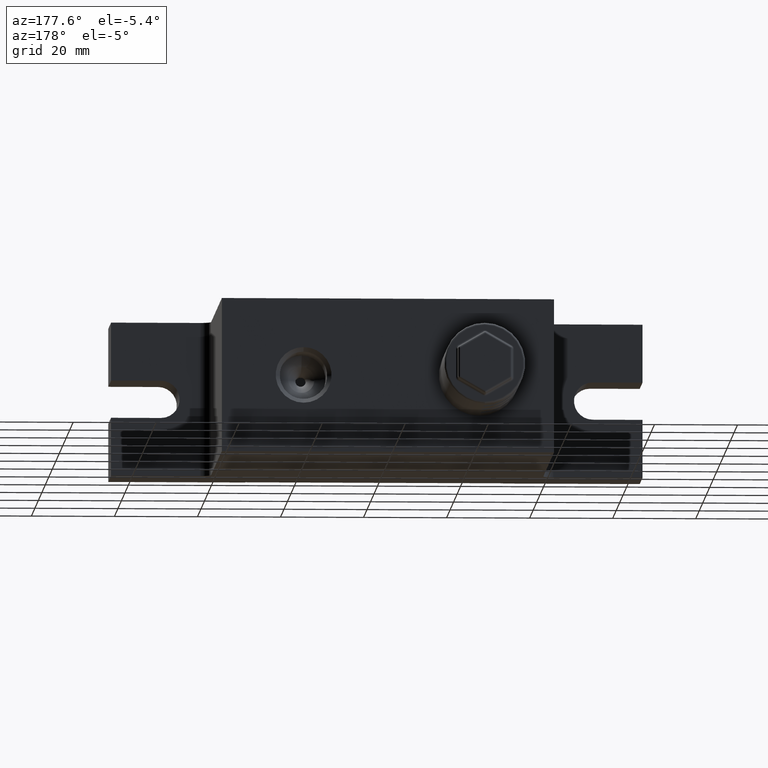
[diagram: clean part render]
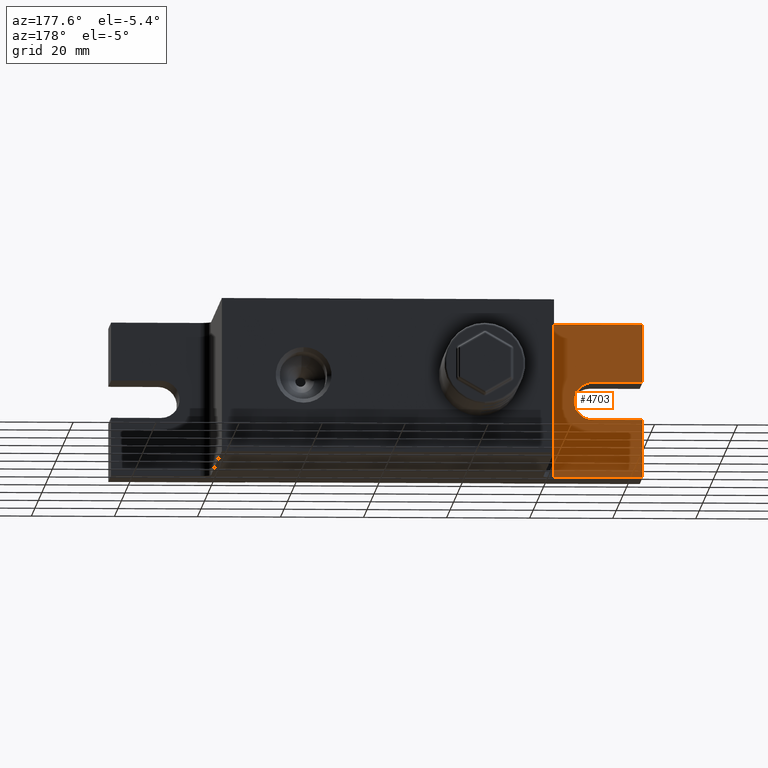
[diagram: same view with one face highlighted and labeled with its STEP entity id]
A machine part, auxiliary view. The second image highlights one B-rep face of the part: STEP entity #4703.
In plain terms, the highlighted planar face has unit normal (0, -1, 0).
Its self-contained STEP definition (entity closure, byte-faithful):
#447 = CARTESIAN_POINT ( 'NONE',  ( -64.00000000000000000, -24.00000000000000000, -18.50000000000000000 ) ) ;
#520 = CARTESIAN_POINT ( 'NONE',  ( -64.00000000000000000, -24.00000000000000000, -18.50000000000000000 ) ) ;
#562 = ORIENTED_EDGE ( 'NONE', *, *, #2410, .F. ) ;
#568 = VERTEX_POINT ( 'NONE', #6760 ) ;
#851 = VECTOR ( 'NONE', #3401, 1000.000000000000000 ) ;
#1036 = DIRECTION ( 'NONE',  ( 0.0000000000000000000, 1.000000000000000000, 0.0000000000000000000 ) ) ;
#1046 = LINE ( 'NONE', #6416, #1779 ) ;
#1091 = AXIS2_PLACEMENT_3D ( 'NONE', #3873, #1036, #5593 ) ;
#1104 = CARTESIAN_POINT ( 'NONE',  ( -64.00000000000000000, -24.00000000000000000, -18.50000000000000000 ) ) ;
#1122 = DIRECTION ( 'NONE',  ( 1.000000000000000000, 0.0000000000000000000, 1.445602896647339900E-016 ) ) ;
#1235 = LINE ( 'NONE', #3775, #4821 ) ;
#1424 = VERTEX_POINT ( 'NONE', #7247 ) ;
#1728 = ORIENTED_EDGE ( 'NONE', *, *, #2270, .F. ) ;
#1779 = VECTOR ( 'NONE', #1816, 1000.000000000000000 ) ;
#1816 = DIRECTION ( 'NONE',  ( -1.000000000000000000, 0.0000000000000000000, 7.228014483236690600E-016 ) ) ;
#1913 = VERTEX_POINT ( 'NONE', #6438 ) ;
#2052 = VECTOR ( 'NONE', #6529, 1000.000000000000000 ) ;
#2140 = ORIENTED_EDGE ( 'NONE', *, *, #4005, .F. ) ;
#2270 = EDGE_CURVE ( 'NONE', #1424, #6388, #5812, .T. ) ;
#2333 = EDGE_CURVE ( 'NONE', #2628, #568, #5367, .T. ) ;
#2410 = EDGE_CURVE ( 'NONE', #2921, #568, #1046, .T. ) ;
#2565 = LINE ( 'NONE', #1104, #4187 ) ;
#2596 = EDGE_CURVE ( 'NONE', #1913, #2725, #1235, .T. ) ;
#2628 = VERTEX_POINT ( 'NONE', #4282 ) ;
#2725 = VERTEX_POINT ( 'NONE', #7494 ) ;
#2921 = VERTEX_POINT ( 'NONE', #4000 ) ;
#3028 = VERTEX_POINT ( 'NONE', #5271 ) ;
#3103 = DIRECTION ( 'NONE',  ( -0.0000000000000000000, -0.0000000000000000000, -1.000000000000000000 ) ) ;
#3122 = EDGE_CURVE ( 'NONE', #3028, #1913, #3478, .T. ) ;
#3297 = ORIENTED_EDGE ( 'NONE', *, *, #2596, .T. ) ;
#3326 = EDGE_CURVE ( 'NONE', #1424, #3028, #2565, .T. ) ;
#3338 = PLANE ( 'NONE',  #7066 ) ;
#3401 = DIRECTION ( 'NONE',  ( 1.000000000000000000, 0.0000000000000000000, 0.0000000000000000000 ) ) ;
#3478 = LINE ( 'NONE', #5640, #851 ) ;
#3591 = LINE ( 'NONE', #4209, #2052 ) ;
#3775 = CARTESIAN_POINT ( 'NONE',  ( -42.50000000000000000, -24.00000000000000000, -18.50000000000000000 ) ) ;
#3857 = VECTOR ( 'NONE', #1122, 1000.000000000000000 ) ;
#3873 = CARTESIAN_POINT ( 'NONE',  ( -52.00000000000000000, -24.00000000000000000, -3.673940397442060000E-015 ) ) ;
#3998 = CARTESIAN_POINT ( 'NONE',  ( -52.00000000000000000, -24.00000000000000000, 4.500000000000000000 ) ) ;
#4000 = CARTESIAN_POINT ( 'NONE',  ( -52.00000000000000000, -24.00000000000000000, -4.500000000000000000 ) ) ;
#4005 = EDGE_CURVE ( 'NONE', #2628, #2725, #3591, .T. ) ;
#4187 = VECTOR ( 'NONE', #6769, 1000.000000000000000 ) ;
#4209 = CARTESIAN_POINT ( 'NONE',  ( -64.00000000000000000, -24.00000000000000000, -18.50000000000000000 ) ) ;
#4272 = ORIENTED_EDGE ( 'NONE', *, *, #2333, .T. ) ;
#4282 = CARTESIAN_POINT ( 'NONE',  ( -64.00000000000000000, -24.00000000000000000, -18.50000000000000000 ) ) ;
#4644 = EDGE_CURVE ( 'NONE', #6388, #2921, #4921, .T. ) ;
#4703 = ADVANCED_FACE ( 'NONE', ( #4838 ), #3338, .F. ) ;
#4821 = VECTOR ( 'NONE', #3103, 1000.000000000000000 ) ;
#4838 = FACE_OUTER_BOUND ( 'NONE', #5458, .T. ) ;
#4921 = CIRCLE ( 'NONE', #1091, 4.500000000000000000 ) ;
#5017 = DIRECTION ( 'NONE',  ( 0.0000000000000000000, 0.0000000000000000000, -1.000000000000000000 ) ) ;
#5058 = DIRECTION ( 'NONE',  ( 0.0000000000000000000, -1.000000000000000000, 0.0000000000000000000 ) ) ;
#5271 = CARTESIAN_POINT ( 'NONE',  ( -64.00000000000000000, -24.00000000000000000, 18.50000000000000000 ) ) ;
#5367 = LINE ( 'NONE', #520, #7169 ) ;
#5458 = EDGE_LOOP ( 'NONE', ( #4272, #562, #7061, #1728, #6542, #5670, #3297, #2140 ) ) ;
#5593 = DIRECTION ( 'NONE',  ( 0.0000000000000000000, 0.0000000000000000000, -1.000000000000000000 ) ) ;
#5640 = CARTESIAN_POINT ( 'NONE',  ( -64.00000000000000000, -24.00000000000000000, 18.50000000000000000 ) ) ;
#5670 = ORIENTED_EDGE ( 'NONE', *, *, #3122, .T. ) ;
#5812 = LINE ( 'NONE', #6219, #3857 ) ;
#6219 = CARTESIAN_POINT ( 'NONE',  ( -64.00000000000000000, -24.00000000000000000, 4.500000000000000000 ) ) ;
#6344 = DIRECTION ( 'NONE',  ( 0.0000000000000000000, 0.0000000000000000000, 1.000000000000000000 ) ) ;
#6388 = VERTEX_POINT ( 'NONE', #3998 ) ;
#6416 = CARTESIAN_POINT ( 'NONE',  ( -64.00000000000000000, -24.00000000000000000, -4.500000000000000000 ) ) ;
#6438 = CARTESIAN_POINT ( 'NONE',  ( -42.50000000000000000, -24.00000000000000000, 18.50000000000000000 ) ) ;
#6529 = DIRECTION ( 'NONE',  ( 1.000000000000000000, 0.0000000000000000000, 0.0000000000000000000 ) ) ;
#6542 = ORIENTED_EDGE ( 'NONE', *, *, #3326, .T. ) ;
#6760 = CARTESIAN_POINT ( 'NONE',  ( -64.00000000000000000, -24.00000000000000000, -4.500000000000000000 ) ) ;
#6769 = DIRECTION ( 'NONE',  ( 0.0000000000000000000, 0.0000000000000000000, 1.000000000000000000 ) ) ;
#7061 = ORIENTED_EDGE ( 'NONE', *, *, #4644, .F. ) ;
#7066 = AXIS2_PLACEMENT_3D ( 'NONE', #447, #5058, #5017 ) ;
#7169 = VECTOR ( 'NONE', #6344, 1000.000000000000000 ) ;
#7247 = CARTESIAN_POINT ( 'NONE',  ( -64.00000000000000000, -24.00000000000000000, 4.500000000000000000 ) ) ;
#7494 = CARTESIAN_POINT ( 'NONE',  ( -42.50000000000000000, -24.00000000000000000, -18.50000000000000000 ) ) ;